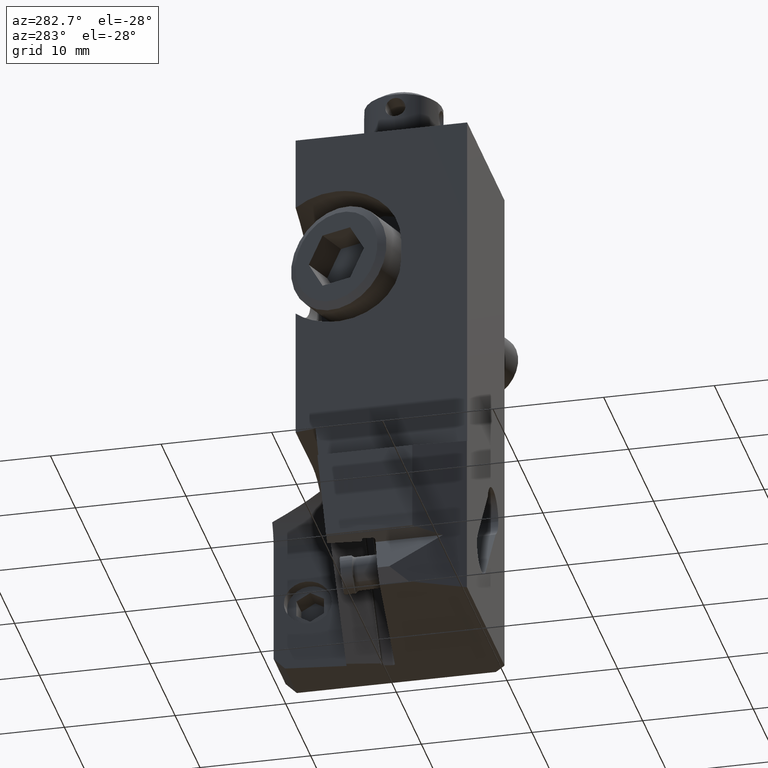
[diagram: clean part render]
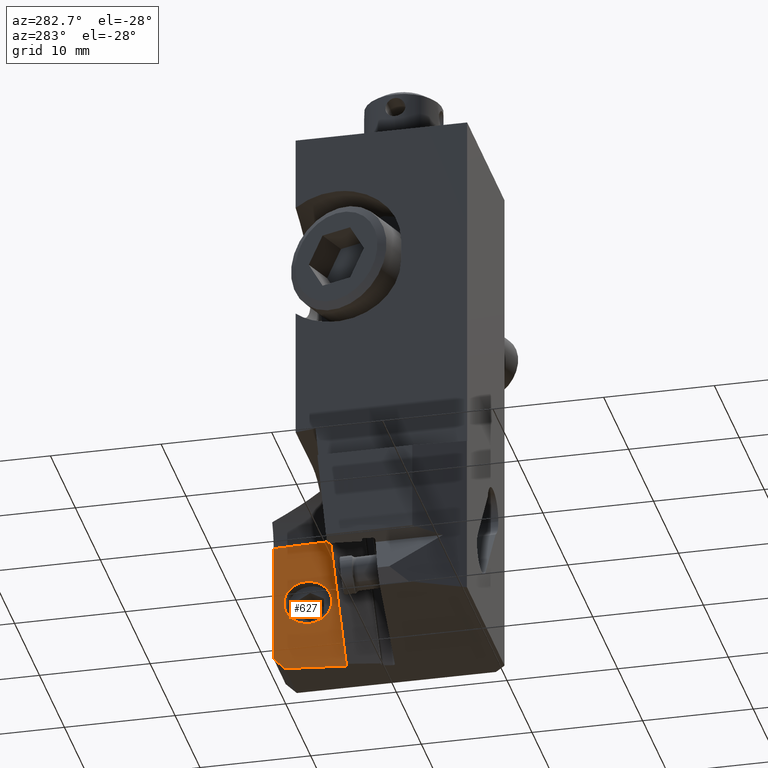
[diagram: same view with one face highlighted and labeled with its STEP entity id]
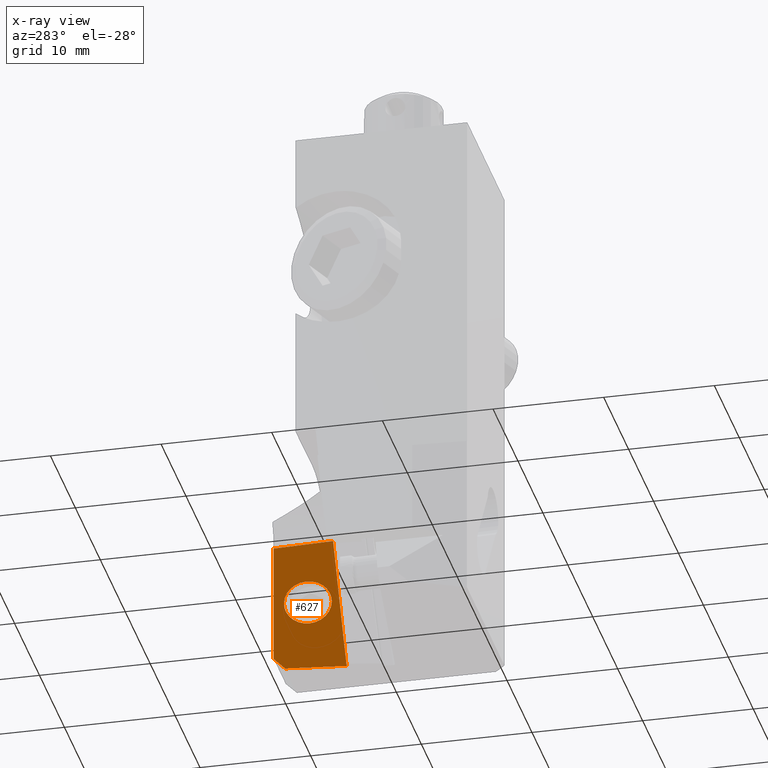
[diagram: x-ray of the same camera — body ghosted, the highlighted face saturated]
A machine part, auxiliary view. The second image highlights one B-rep face of the part: STEP entity #627.
The next image is the same camera in x-ray: the body ghosted, the highlighted face saturated — about 0% of this face is hidden behind the body in this view.
In plain terms, the highlighted planar face has unit normal (0.9914, 0.1305, -0).
Its self-contained STEP definition (entity closure, byte-faithful):
#627=ADVANCED_FACE('',(#997,#998),#851,.F.);
#851=PLANE('',#4372);
#965=ELLIPSE('',#4370,2.11812081721834,2.1);
#966=ELLIPSE('',#4371,2.11812081721834,2.1);
#997=FACE_BOUND('',#1038,.T.);
#998=FACE_BOUND('',#1039,.T.);
#1038=EDGE_LOOP('',(#1378,#1379,#1380,#1381,#1382));
#1039=EDGE_LOOP('',(#1383,#1384));
#1378=ORIENTED_EDGE('',*,*,#2931,.T.);
#1379=ORIENTED_EDGE('',*,*,#2932,.T.);
#1380=ORIENTED_EDGE('',*,*,#2933,.T.);
#1381=ORIENTED_EDGE('',*,*,#2934,.T.);
#1382=ORIENTED_EDGE('',*,*,#2930,.F.);
#1383=ORIENTED_EDGE('',*,*,#2935,.T.);
#1384=ORIENTED_EDGE('',*,*,#2936,.T.);
#2523=VERTEX_POINT('',#6277);
#2525=VERTEX_POINT('',#6281);
#2526=VERTEX_POINT('',#6285);
#2527=VERTEX_POINT('',#6287);
#2528=VERTEX_POINT('',#6289);
#2529=VERTEX_POINT('',#6292);
#2530=VERTEX_POINT('',#6293);
#2930=EDGE_CURVE('',#2525,#2523,#3506,.T.);
#2931=EDGE_CURVE('',#2525,#2526,#3507,.T.);
#2932=EDGE_CURVE('',#2526,#2527,#3508,.T.);
#2933=EDGE_CURVE('',#2527,#2528,#3509,.T.);
#2934=EDGE_CURVE('',#2528,#2523,#3510,.T.);
#2935=EDGE_CURVE('',#2529,#2530,#965,.T.);
#2936=EDGE_CURVE('',#2530,#2529,#966,.T.);
#3506=LINE('',#6282,#3868);
#3507=LINE('',#6284,#3869);
#3508=LINE('',#6286,#3870);
#3509=LINE('',#6288,#3871);
#3510=LINE('',#6290,#3872);
#3868=VECTOR('',#4941,1.);
#3869=VECTOR('',#4944,1.);
#3870=VECTOR('',#4945,1.);
#3871=VECTOR('',#4946,1.);
#3872=VECTOR('',#4947,1.);
#4370=AXIS2_PLACEMENT_3D('',#6291,#4948,#4949);
#4371=AXIS2_PLACEMENT_3D('',#6294,#4950,#4951);
#4372=AXIS2_PLACEMENT_3D('',#6295,#4952,#4953);
#4941=DIRECTION('',(1.287072622239E-13,1.418439458447E-14,1.));
#4944=DIRECTION('',(0.0926915987238524,-0.704062592219618,-0.704062592219618));
#4945=DIRECTION('',(0.130526192220002,-0.991444861373817,-3.26149349936906E-14));
#4946=DIRECTION('',(-0.0124043238081198,0.0942201935825385,0.995474102059984));
#4947=DIRECTION('',(-0.129935443995704,0.986957683118127,-0.0950332159181126));
#4948=DIRECTION('',(0.991444861373804,0.130526192220101,-2.04625323783101E-14));
#4949=DIRECTION('',(0.130526192220101,-0.991444861373804,1.55428364469261E-13));
#4950=DIRECTION('',(0.991444861373804,0.130526192220101,-2.04625323783101E-14));
#4951=DIRECTION('',(0.130526192220101,-0.991444861373804,1.55428364469261E-13));
#4952=DIRECTION('',(0.991444861373804,0.130526192220101,-2.04625323783101E-14));
#4953=DIRECTION('',(-0.0124043238082894,0.0942201935825087,0.995474102059985));
#6277=CARTESIAN_POINT('',(-4.84255716232119,20.,-34.4328127926479));
#6281=CARTESIAN_POINT('',(-4.842557162324,20.,-45.45333262775));
#6282=CARTESIAN_POINT('',(-4.842557162324,20.,-45.45333262775));
#6284=CARTESIAN_POINT('',(-4.842557162324,20.,-45.45333262775));
#6285=CARTESIAN_POINT('',(-4.710904664736,19.,-46.45333262775));
#6286=CARTESIAN_POINT('',(-4.710904664736,19.,-46.45333262775));
#6287=CARTESIAN_POINT('',(-4.,13.60014296907,-46.45333262775));
#6288=CARTESIAN_POINT('',(-4.,13.60014296907,-46.45333262775));
#6289=CARTESIAN_POINT('',(-4.156040976654,14.78539185926,-33.93070313805));
#6290=CARTESIAN_POINT('',(-4.156040976654,14.78539185926,-33.93070313805));
#6291=CARTESIAN_POINT('',(-4.44759966956124,17.,-39.95333262775));
#6292=CARTESIAN_POINT('',(-4.1711294246278,14.9,-39.95333262775));
#6293=CARTESIAN_POINT('',(-4.72406991449494,19.1,-39.95333262775));
#6294=CARTESIAN_POINT('',(-4.44759966956124,17.,-39.95333262775));
#6295=CARTESIAN_POINT('',(-4.489320279578,17.31689949512,-40.49283758742));